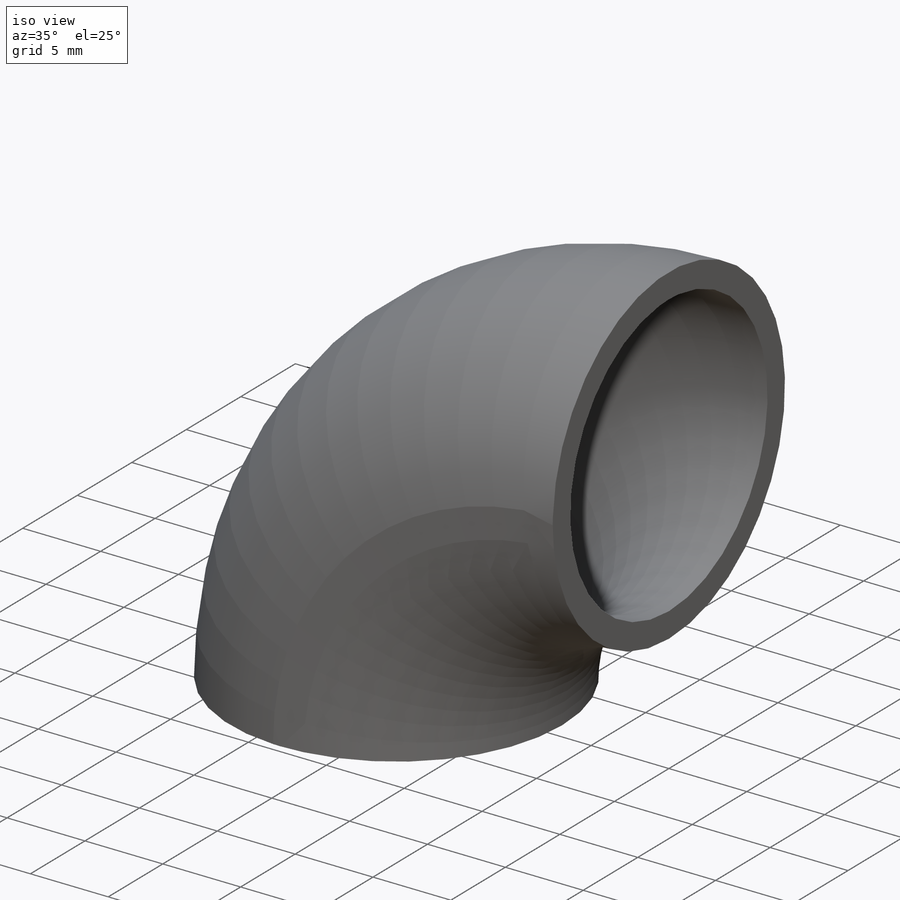
[diagram: iso view]
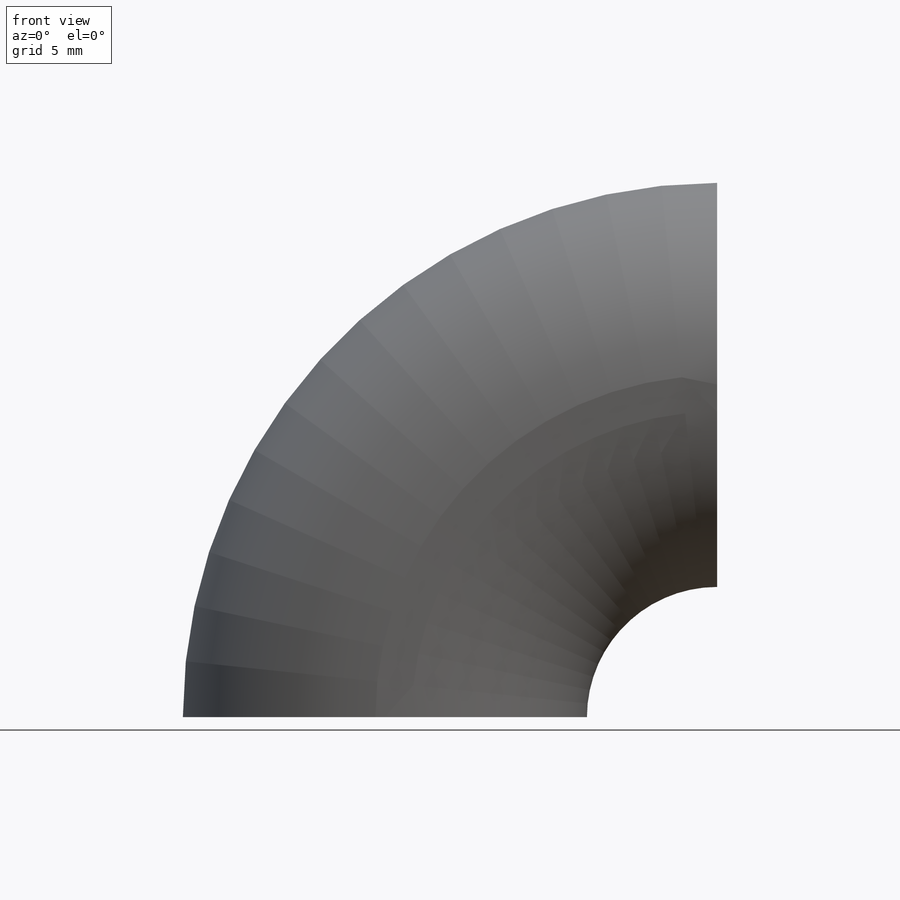
[diagram: front view]
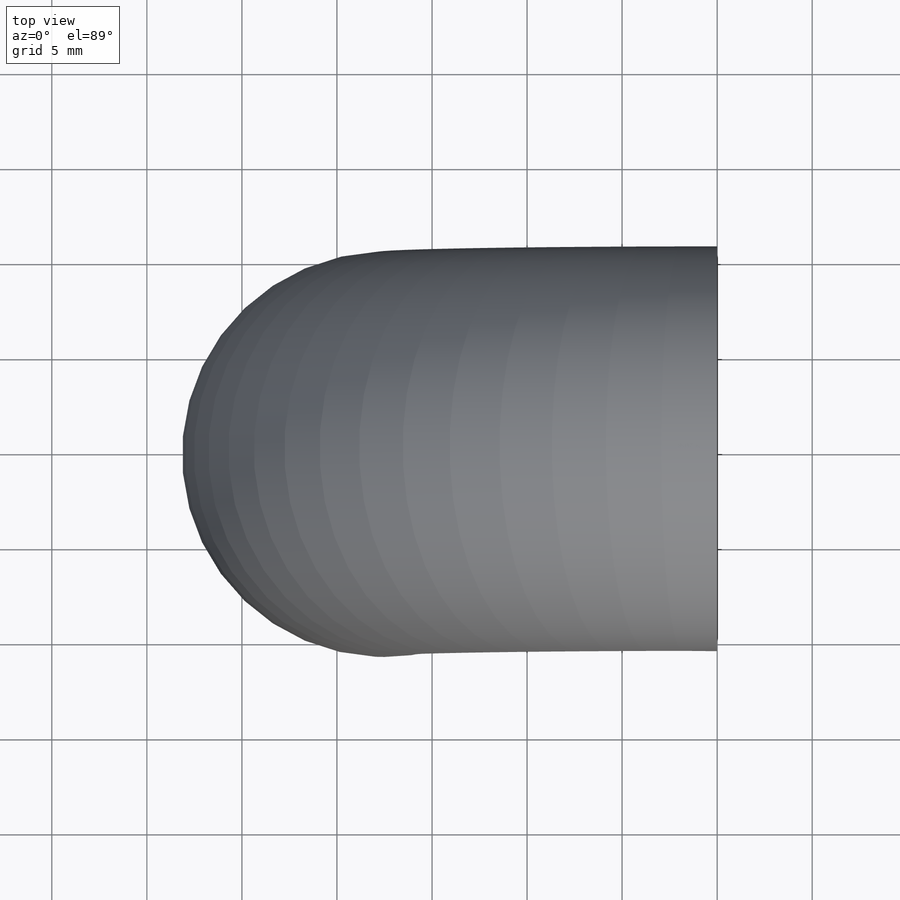
[diagram: top view]
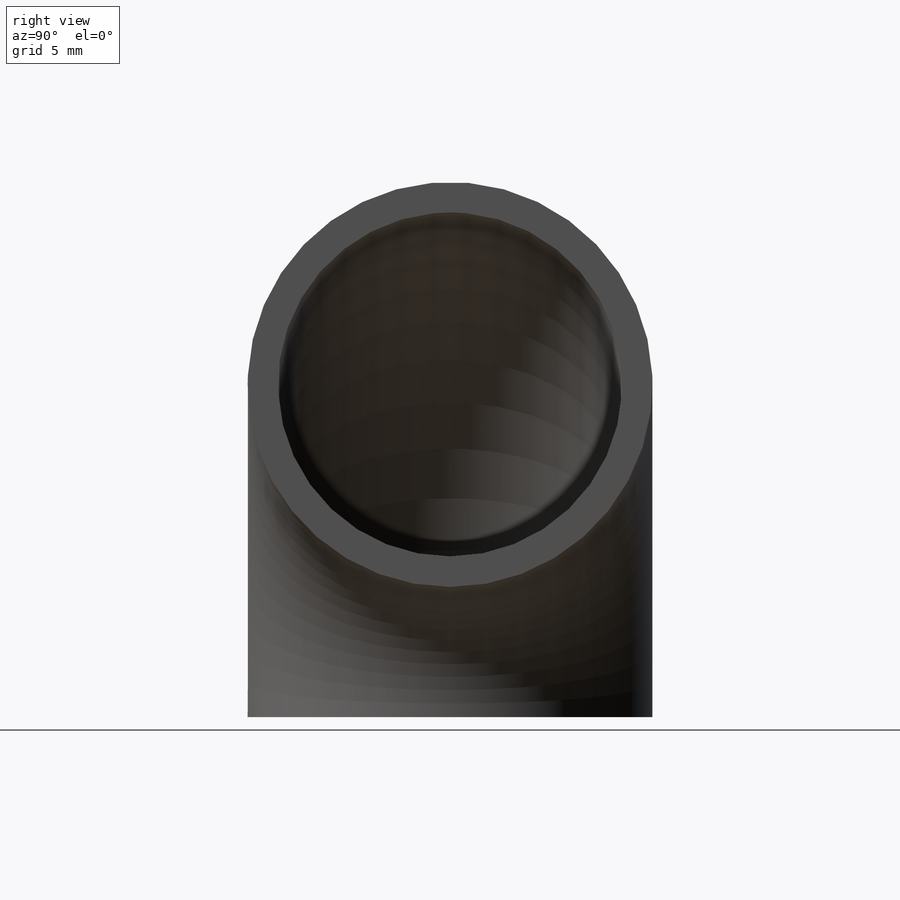
[diagram: right view]
SOLIDWORKS PART (.sldprt)
format: sldprt  version: not decoded by parser v0  size: 3,364,352 bytes
history: native  units: mm
features: sketch x3, shell x2, material x1, sweep x1 + 1 further entry (+14 scaffold rows collapsed)
feature tree (22):
  scaffold x14  (default folders/planes/origin — collapsed)
  material  "Material <not specified>"
  "Design Table"
  sketch  "Route"  dims[c1.Diameter(da)=21.3mm c1.Pipe Outside diameter(da)=21.3mm c1.BendRadius=17.5mm c2.BendRadius=17.5mm]
  sketch  "ElbowArc"  dims[c1.D1=~20.674085mm c1.D2=~22.340125mm c2.D1=~36.102804mm c2.BendAngle=90.0deg c3.D1=20.0mm c3.D2=20.0mm c3.e=7.0mm c4.D1=305.0mm]
  sweep  "Elbow"
  shell  "ElbowShell"  Thickness=4mm Wall thickness,s,for series=4mm
  sketch  "Sketch1"  dims[Diameter=15.0mm]
  shell  "Axis2"  Thickness=15mm Diameter=15mm r=152mm
decode coverage: 5 of 6 modeling features carry decoded parameters; 1 rows unclassified (native names shown)
note: ~ marks probable driven/reference dimensions
note: suppression state not decoded; provenance and decode notes live in map.json
